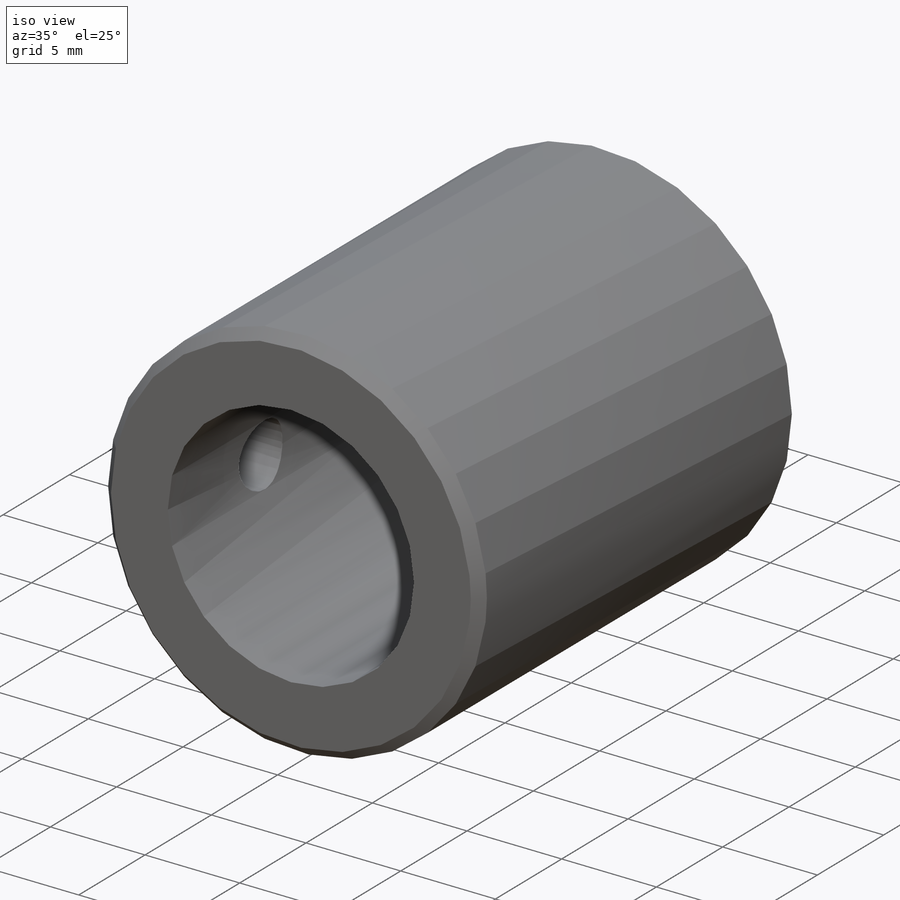
[diagram: iso view]
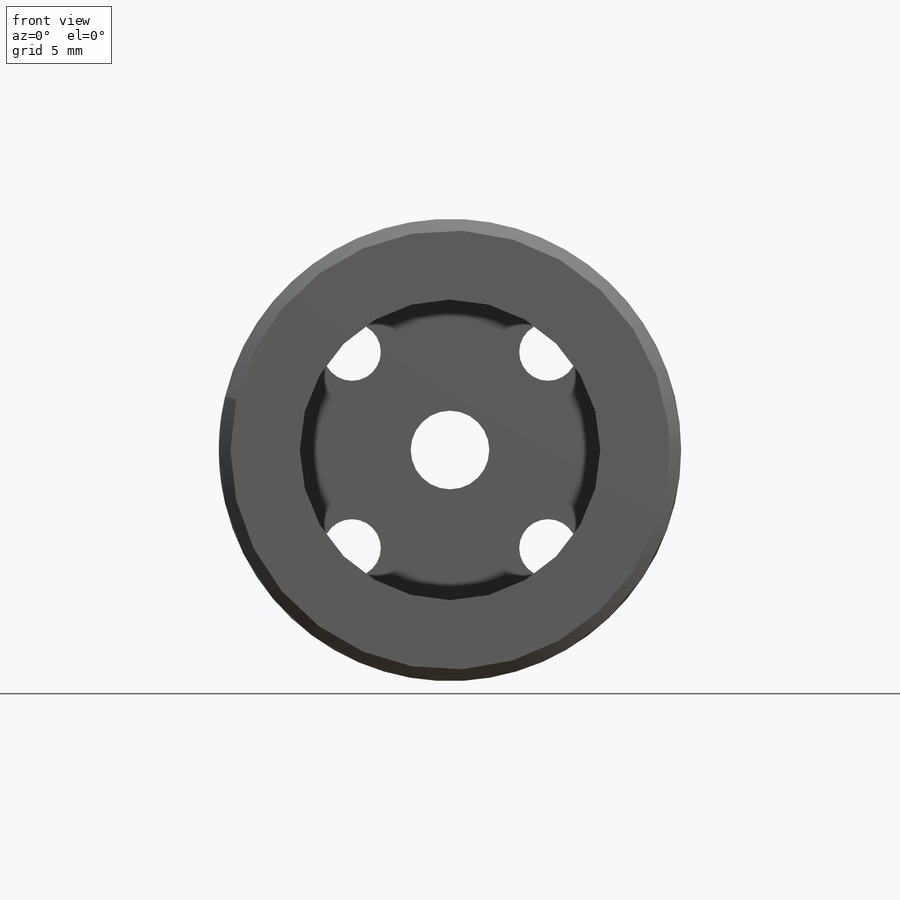
[diagram: front view]
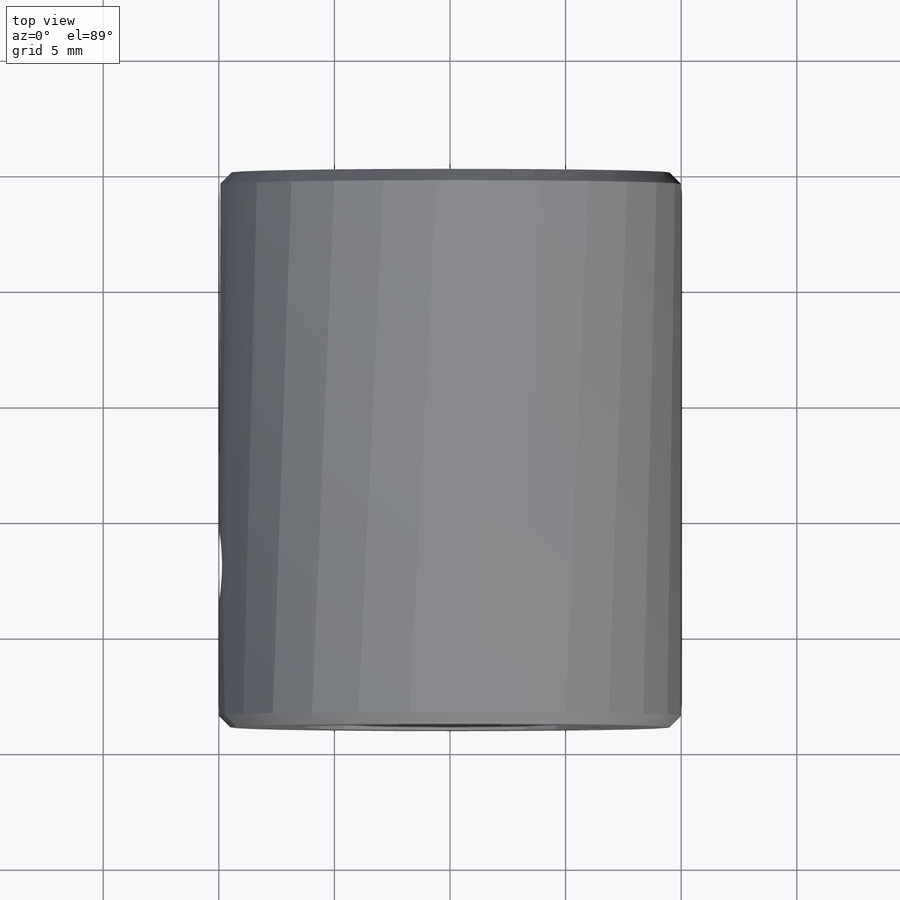
[diagram: top view]
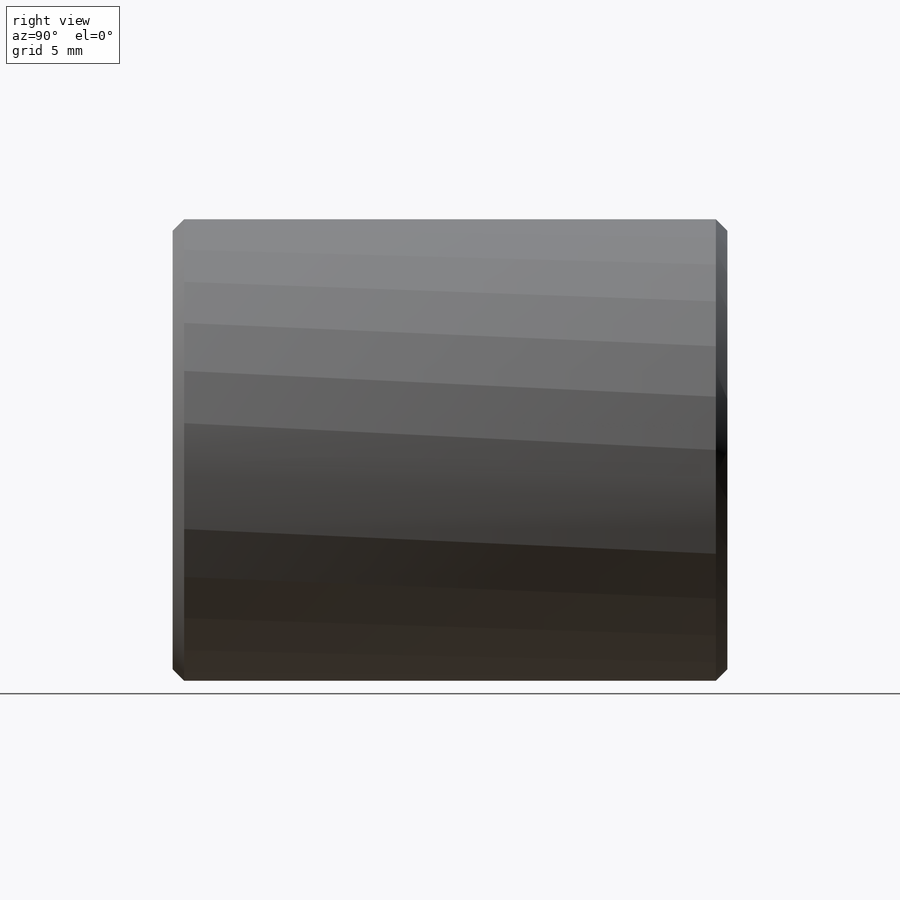
[diagram: right view]
SOLIDWORKS PART (.sldprt)
format: sldprt  version: not decoded by parser v0  size: 364,032 bytes
history: native  units: mm
features: sketch x10, thread x5, hole x3, material x1, extrude x1, cut_extrude x1, plane x1, chamfer x1 (+11 scaffold rows collapsed)
feature tree (34):
  scaffold x11  (default folders/planes/origin — collapsed)
  material  "3.1355 (EN-AW 2024)"
  sketch  "Эскиз1"  dims[D1=20.0mm]
  extrude  "Бобышка-Вытянуть1"  Depth=24mm
  sketch  "Эскиз2"  dims[D1=13.0mm]
  cut_extrude  "Вырез-Вытянуть1"  Depth=15mm
  sketch  "Эскиз3"  dims[D1=7.0mm]
  plane  "Плоскость1"
  hole  "Отверстие обработанное метчиком M4x0.71"  [1 undecoded]
  sketch  "Эскиз5"
  sketch  "Эскиз4"  dims[hole-wizard template sketch: 50 standard entries collapsed; hole parameters above]
  thread  "Отверстие резьбы1"  Diameter=3.71291mm  [1 undecoded]
  sketch  "Эскиз7"  dims[c1.D1=12.0mm c1.D2=~4.768103mm c2.D2=45.0deg c2.D3=6.0mm c3.D3=4.0]
  hole  "Отверстие обработанное метчиком M3x0.51"  [1 undecoded]
  sketch  "Эскиз9"
  thread  "Отверстие резьбы2"  Diameter=9mm  [1 undecoded]
  thread  "Отверстие резьбы3"  Diameter=9mm  [1 undecoded]
  thread  "Отверстие резьбы4"  Diameter=9mm  [1 undecoded]
  thread  "Отверстие резьбы5"  Diameter=9mm  [1 undecoded]
  sketch  "Эскиз8"  dims[hole-wizard template sketch: 47 standard entries collapsed; hole parameters kept: c15.Глубина сверла=8.999mm c15.D3=~14.816244mm c15.Угол заточки сверла=118.0deg]
  hole  "Цековка для  винта с полукруглой головкой M31"  [1 undecoded]
  sketch  "Эскиз11"
  sketch  "Эскиз10"  dims[hole-wizard template sketch: 42 standard entries collapsed; hole parameters kept: c12.Глубина сквозного отверстия=24.0mm c12.Диаметр цековки=6.7mm c12.Глубина цековки=6.0mm]
  chamfer  "Фаска1"  Distance=0.5mm Angle=45deg
decode coverage: 15 of 21 modeling features carry decoded parameters
note: ~ marks probable driven/reference dimensions
note: 8 parameter values undecoded
summary: no parameter record found for 3 features
note: suppression state not decoded; provenance and decode notes live in map.json
